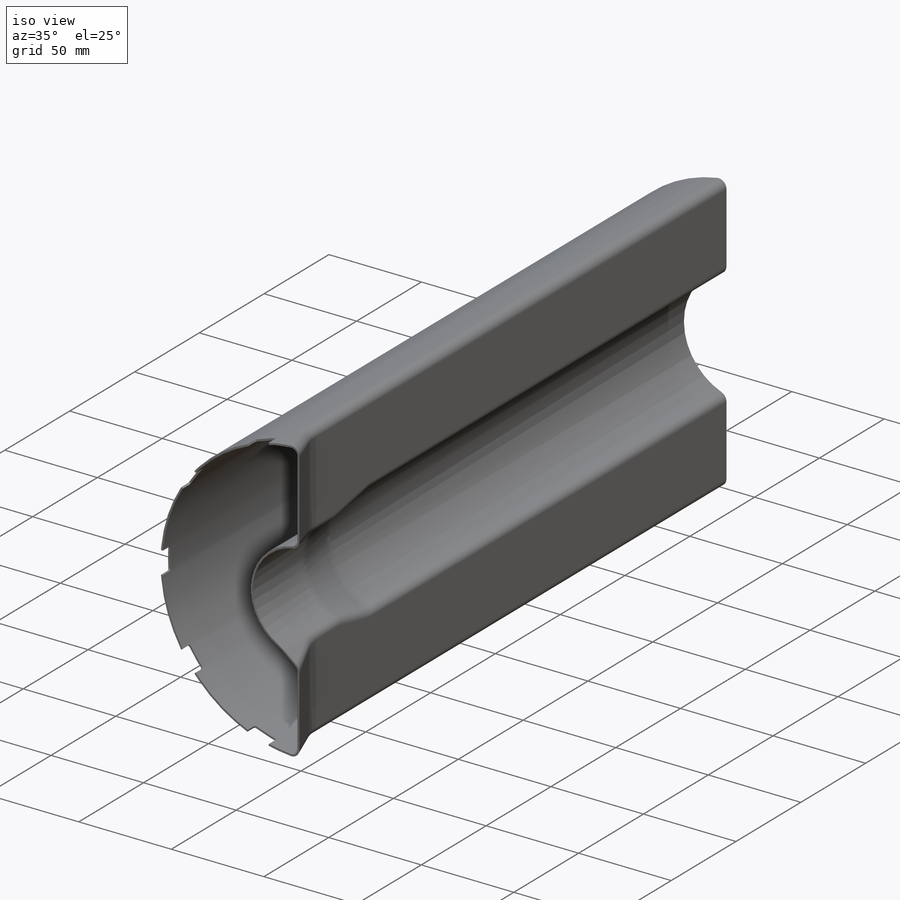
[diagram: iso view]
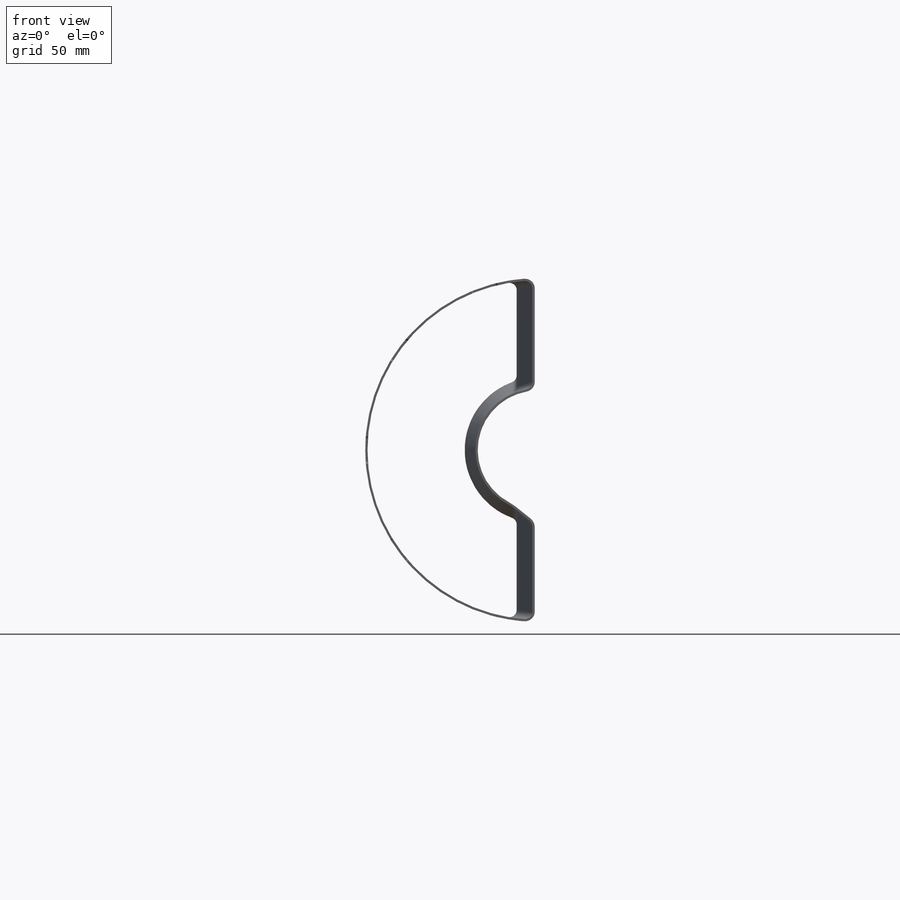
[diagram: front view]
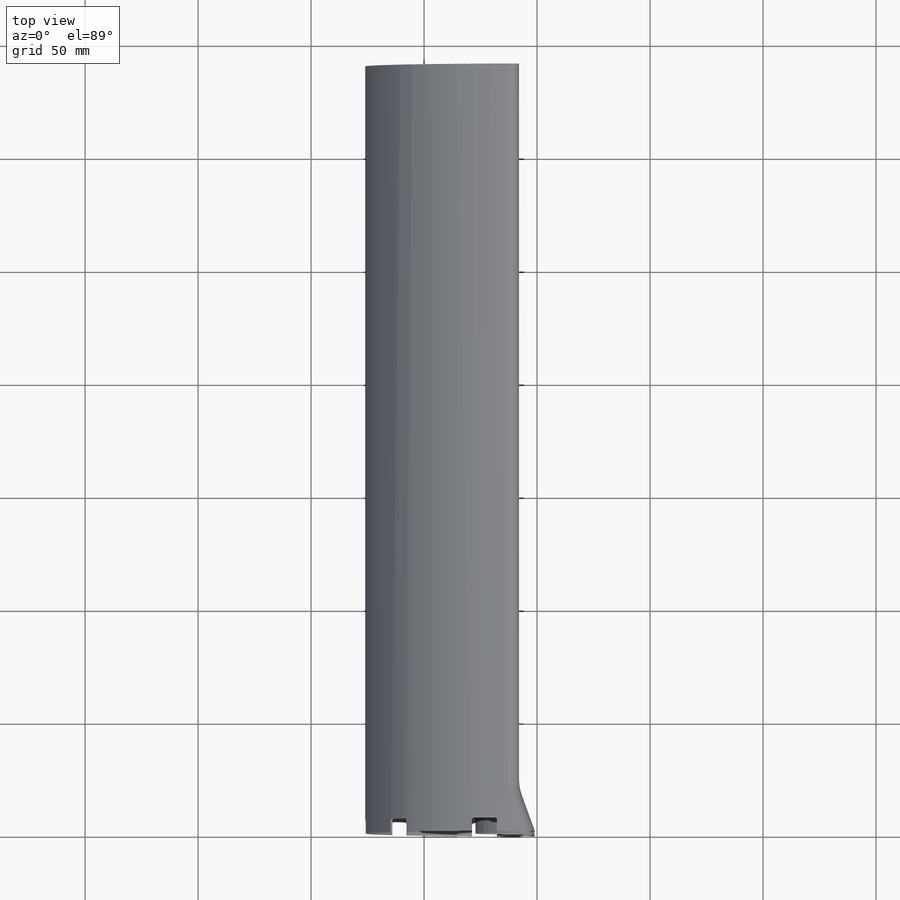
[diagram: top view]
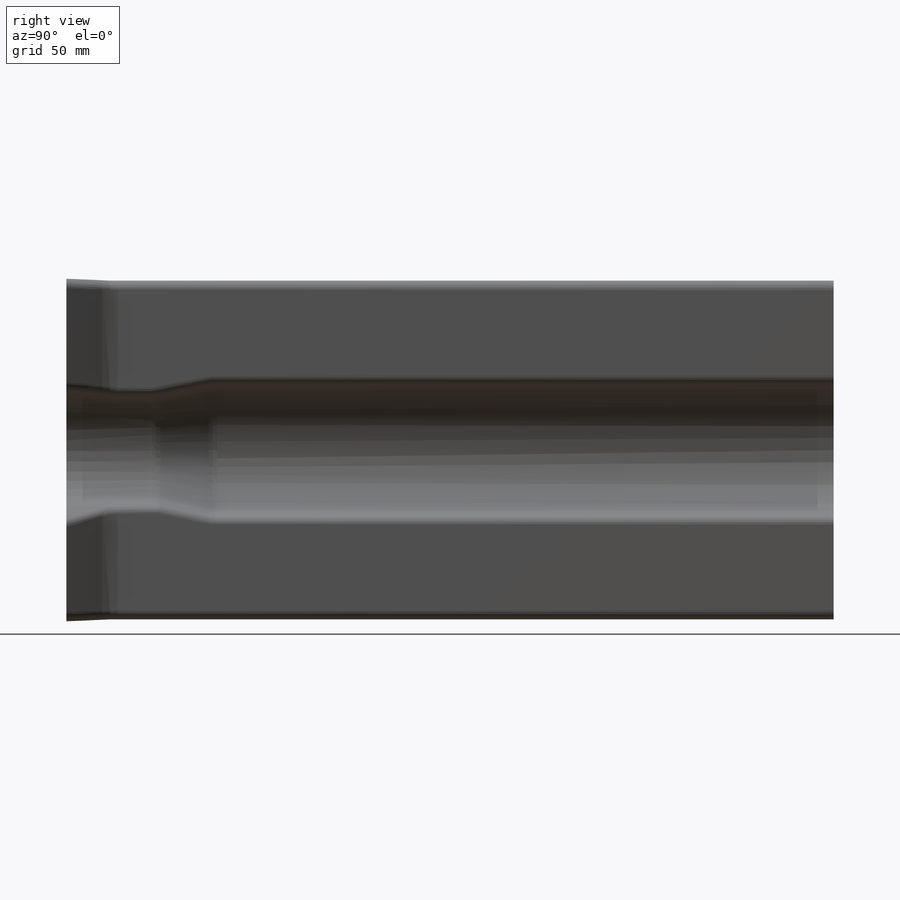
[diagram: right view]
SOLIDWORKS PART (.sldprt)
format: sldprt  version: not decoded by parser v0  size: 716,288 bytes
history: native  units: mm
features: sketch x6, cut_extrude x5, fillet x5, material x1, revolve x1, shell x1, pattern_circular x1 (+11 scaffold rows collapsed)
feature tree (31):
  scaffold x11  (default folders/planes/origin — collapsed)
  material  "ladder carbon corrected"
  sketch  "Sketch1"  dims[c1.D1=~16.765485mm c2.D1=25.0deg c3.D1=~33.020715mm c4.D1=25.0deg c4.D2=~33.531886mm c5.D2=~0.963452deg c6.D2=2.0mm c6.D3=2.0mm c6.D4=26.25mm c6.D5=74.14mm c6.D6=22.0mm c6.D1=76.0mm c7.D3=26.25mm c7.D4=2.0mm c7.D2=40.0mm c8.D4=31.0mm c8.D5=25.0mm c8.D6=340.0mm]
  revolve  "Revolve1"  Angle=360deg
  sketch  "Sketch14"  dims[c1.D1=~77.431867mm c2.D1=~179.176258deg c3.D1=2.0mm c3.D2=2.2mm c3.D3=22.0mm c3.D4=10.2mm c4.D1=1.2mm c4.D5=416.0mm c4.D4=8.0mm c4.D3=22.0mm c5.D5=8.0mm]
  cut_extrude  "Cut-Extrude3"  [1 undecoded]
  sketch  "Sketch17"  dims[D1=8.0mm D2=10.0mm]
  cut_extrude  "Cut-Extrude5"  [1 undecoded]
  shell  "Shell2"  Thickness=1mm
  fillet  "Fillet18"  Radius=3.2mm
  fillet  "Fillet19"  Radius=4.2mm
  fillet  "Fillet20"  Radius=20mm
  fillet  "Fillet21"  Radius=20mm
  sketch  "Sketch6"  dims[c1.D1=~125.03759mm c2.D1=18.0deg c2.D2=12.0mm]
  cut_extrude  "Extrude5"  Depth=6mm
  pattern_circular  "CirPattern1"  Count=5 Angle=144deg
  fillet  "Fillet5"  Radius=1mm
  sketch  "Sketch15"  dims[D1=1.0mm D2=~11.791321mm]
  cut_extrude  "Cut-Extrude4"  [1 undecoded]
  sketch  "Sketch16"  dims[D1=90.0mm D2=0.25mm D3=0.25mm]
  cut_extrude  "end glue clearance"  [1 undecoded]
decode coverage: 15 of 19 modeling features carry decoded parameters
note: ~ marks probable driven/reference dimensions
note: 4 parameter values undecoded
summary: no parameter record found for 4 features
note: suppression state not decoded; provenance and decode notes live in map.json
